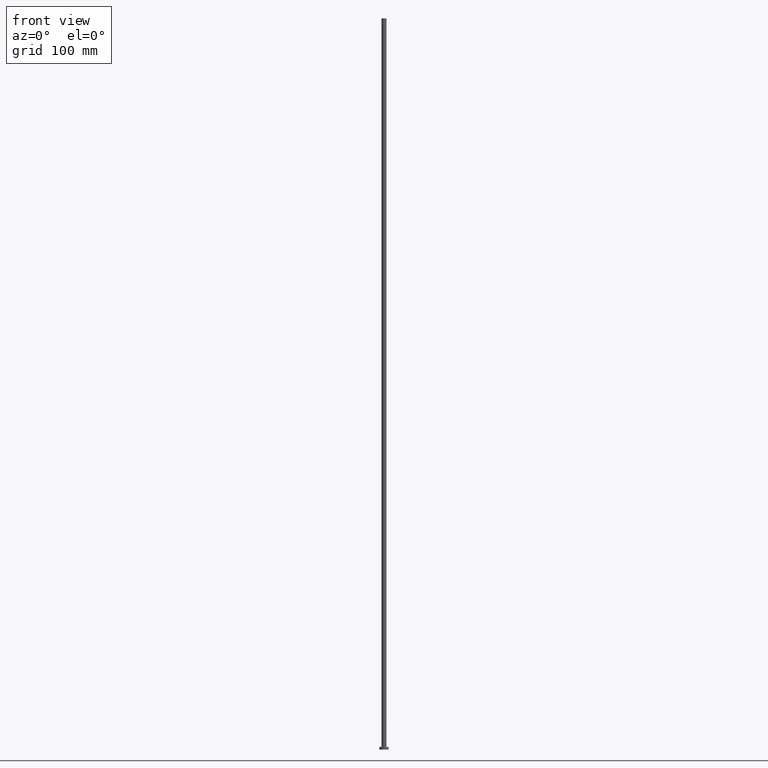
[diagram: clean part render]
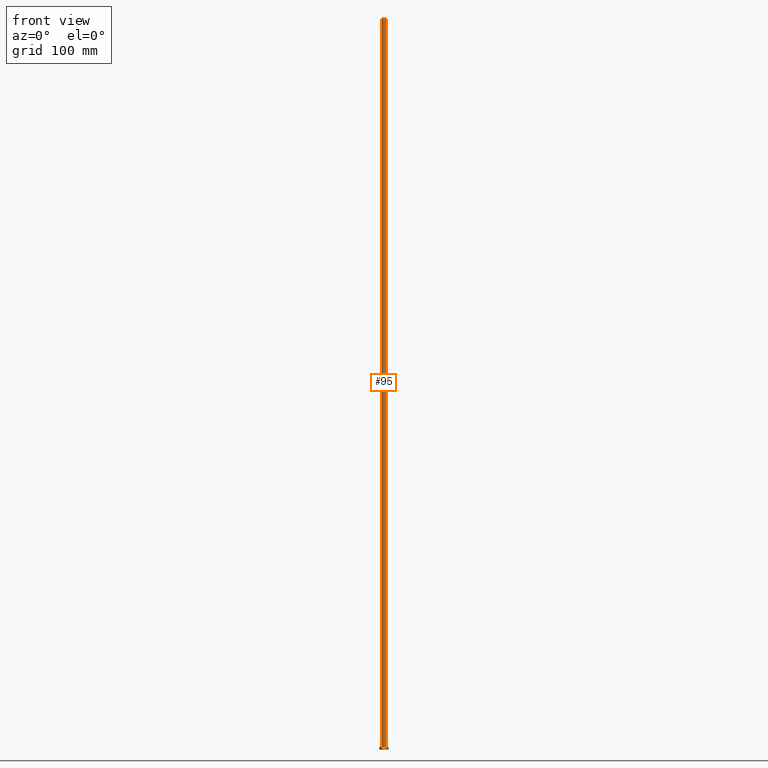
[diagram: same view with one face highlighted and labeled with its STEP entity id]
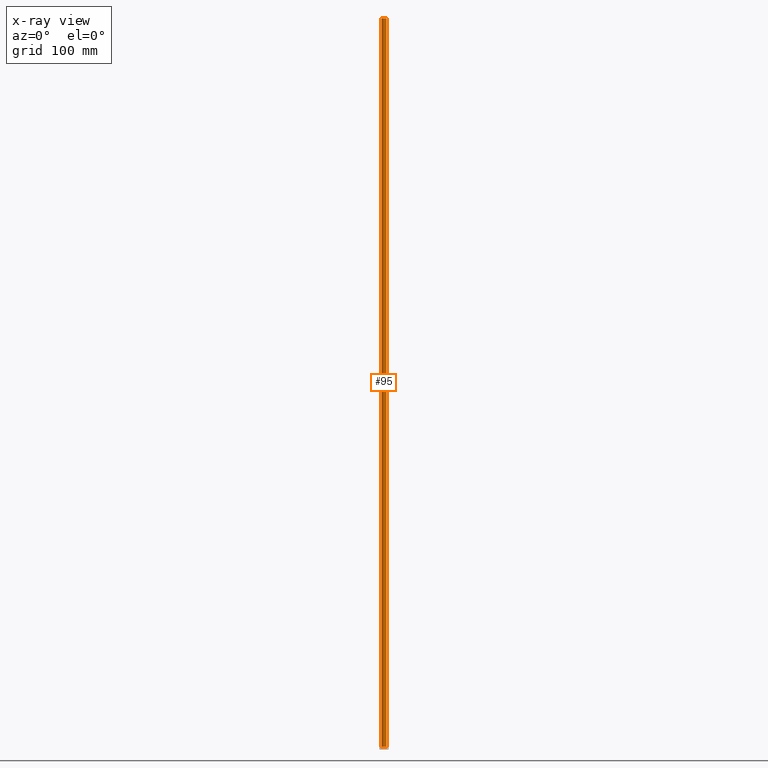
[diagram: x-ray of the same camera — body ghosted, the highlighted face saturated]
A machine part, front view. The second image highlights one B-rep face of the part: STEP entity #95.
The next image is the same camera in x-ray: the body ghosted, the highlighted face saturated — about 0% of this face is hidden behind the body in this view.
In plain terms, the highlighted cylindrical surface (edge-blend (fillet) strip) has radius 2.75 mm, axis along (-0, -0, -1).
Its self-contained STEP definition (entity closure, byte-faithful):
#4 = AXIS2_PLACEMENT_3D ( 'NONE', #59, #172, #187 ) ;
#6 = ORIENTED_EDGE ( 'NONE', *, *, #170, .F. ) ;
#13 = VERTEX_POINT ( 'NONE', #117 ) ;
#23 = CIRCLE ( 'NONE', #197, 2.750000000000000000 ) ;
#31 = CARTESIAN_POINT ( 'NONE',  ( -2.750000000000000000, 0.000000000000000000, 800.0000000000000000 ) ) ;
#38 = ORIENTED_EDGE ( 'NONE', *, *, #234, .T. ) ;
#51 = VECTOR ( 'NONE', #155, 1000.000000000000000 ) ;
#56 = CIRCLE ( 'NONE', #4, 2.750000000000000000 ) ;
#59 = CARTESIAN_POINT ( 'NONE',  ( 0.000000000000000000, 0.000000000000000000, 800.0000000000000000 ) ) ;
#62 = CARTESIAN_POINT ( 'NONE',  ( -2.750000000000000000, 0.000000000000000000, 3.000000000000000000 ) ) ;
#69 = LINE ( 'NONE', #91, #51 ) ;
#77 = CARTESIAN_POINT ( 'NONE',  ( 2.750000000000000000, 3.367778697655221012E-16, 3.000000000000000000 ) ) ;
#91 = CARTESIAN_POINT ( 'NONE',  ( 2.750000000000000000, 3.367778697655221012E-16, 800.0000000000000000 ) ) ;
#95 = ADVANCED_FACE ( 'NONE', ( #196 ), #178, .T. ) ;
#97 = ORIENTED_EDGE ( 'NONE', *, *, #100, .T. ) ;
#99 = LINE ( 'NONE', #31, #145 ) ;
#100 = EDGE_CURVE ( 'NONE', #173, #227, #23, .T. ) ;
#117 = CARTESIAN_POINT ( 'NONE',  ( 2.750000000000000000, 3.367778697655221012E-16, 800.0000000000000000 ) ) ;
#126 = EDGE_CURVE ( 'NONE', #13, #227, #69, .T. ) ;
#127 = CARTESIAN_POINT ( 'NONE',  ( -2.750000000000000000, 0.000000000000000000, 800.0000000000000000 ) ) ;
#136 = DIRECTION ( 'NONE',  ( 1.000000000000000000, 0.000000000000000000, 0.000000000000000000 ) ) ;
#138 = AXIS2_PLACEMENT_3D ( 'NONE', #249, #236, #159 ) ;
#145 = VECTOR ( 'NONE', #224, 1000.000000000000000 ) ;
#155 = DIRECTION ( 'NONE',  ( -0.000000000000000000, -0.000000000000000000, -1.000000000000000000 ) ) ;
#159 = DIRECTION ( 'NONE',  ( -1.000000000000000000, 0.000000000000000000, 0.000000000000000000 ) ) ;
#170 = EDGE_CURVE ( 'NONE', #182, #13, #56, .T. ) ;
#172 = DIRECTION ( 'NONE',  ( 0.000000000000000000, 0.000000000000000000, 1.000000000000000000 ) ) ;
#173 = VERTEX_POINT ( 'NONE', #62 ) ;
#178 = CYLINDRICAL_SURFACE ( 'NONE', #138, 2.750000000000000000 ) ;
#182 = VERTEX_POINT ( 'NONE', #127 ) ;
#187 = DIRECTION ( 'NONE',  ( 1.000000000000000000, 0.000000000000000000, 0.000000000000000000 ) ) ;
#196 = FACE_OUTER_BOUND ( 'NONE', #214, .T. ) ;
#197 = AXIS2_PLACEMENT_3D ( 'NONE', #199, #218, #136 ) ;
#199 = CARTESIAN_POINT ( 'NONE',  ( 0.000000000000000000, 0.000000000000000000, 3.000000000000000000 ) ) ;
#211 = ORIENTED_EDGE ( 'NONE', *, *, #126, .F. ) ;
#214 = EDGE_LOOP ( 'NONE', ( #211, #6, #38, #97 ) ) ;
#218 = DIRECTION ( 'NONE',  ( 0.000000000000000000, 0.000000000000000000, 1.000000000000000000 ) ) ;
#224 = DIRECTION ( 'NONE',  ( -0.000000000000000000, -0.000000000000000000, -1.000000000000000000 ) ) ;
#227 = VERTEX_POINT ( 'NONE', #77 ) ;
#234 = EDGE_CURVE ( 'NONE', #182, #173, #99, .T. ) ;
#236 = DIRECTION ( 'NONE',  ( -0.000000000000000000, -0.000000000000000000, -1.000000000000000000 ) ) ;
#249 = CARTESIAN_POINT ( 'NONE',  ( 0.000000000000000000, 0.000000000000000000, 800.0000000000000000 ) ) ;